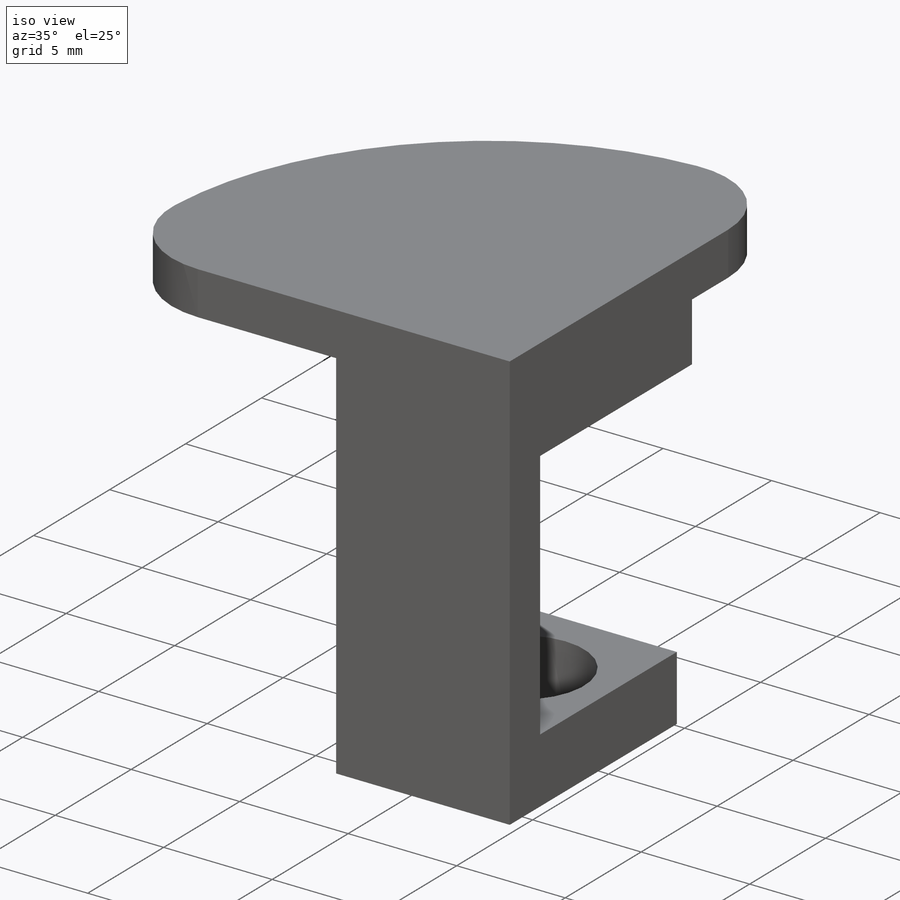
[diagram: iso view]
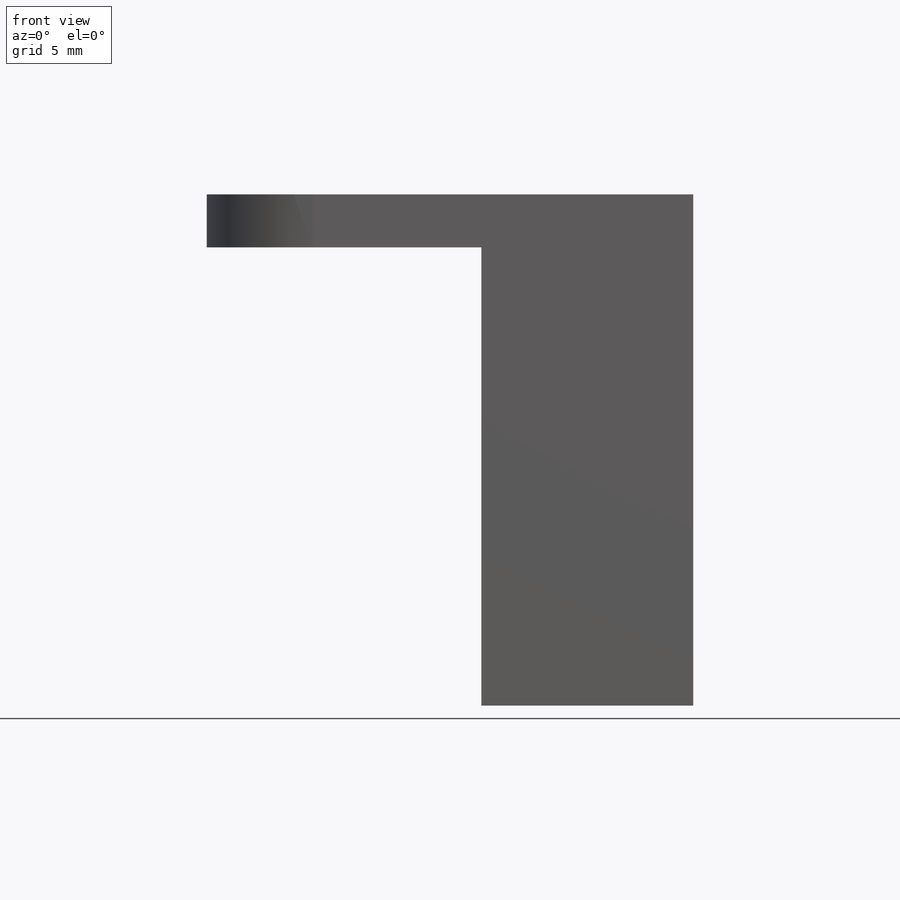
[diagram: front view]
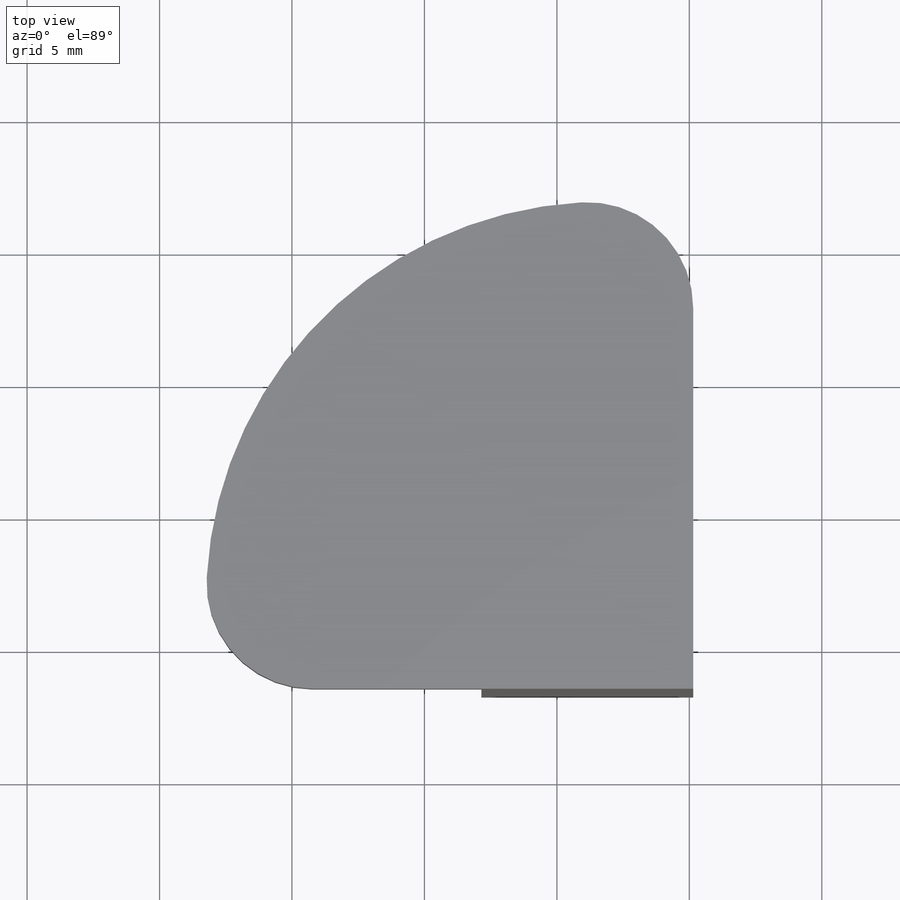
[diagram: top view]
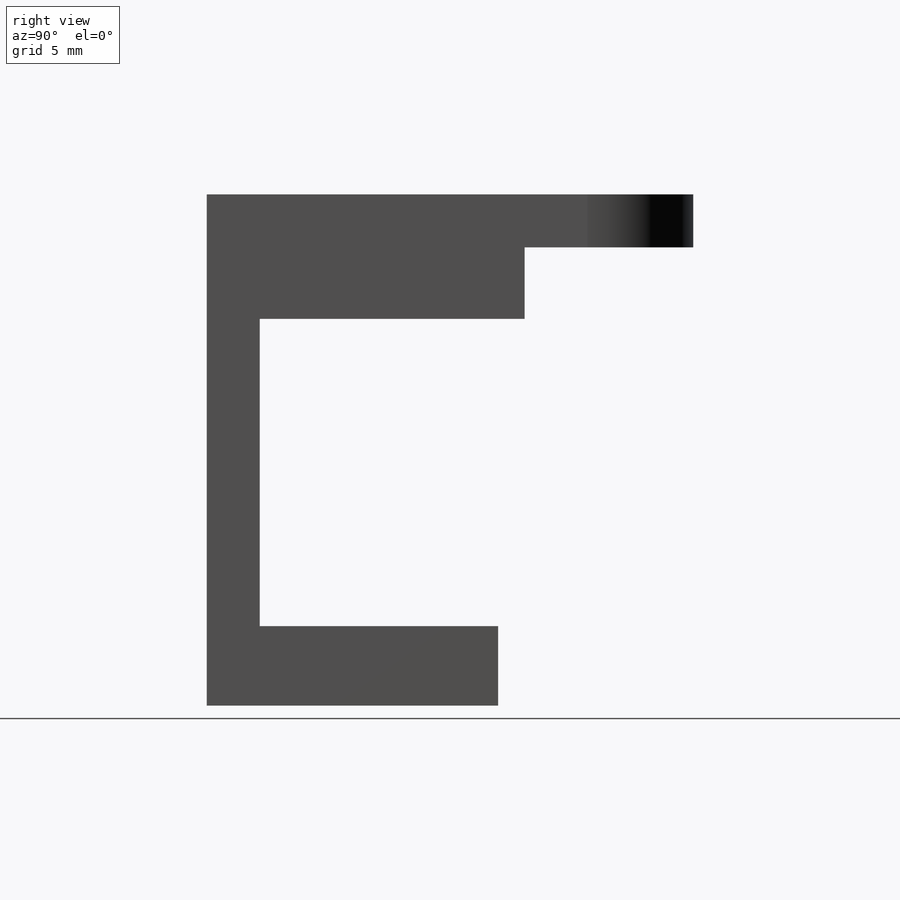
[diagram: right view]
SOLIDWORKS PART (.sldprt)
format: sldprt  version: not decoded by parser v0  size: 273,408 bytes
history: native  units: mm
features: sketch x8, extrude x5, plane x3, fillet x3, cut_extrude x2, material x1 (+9 scaffold rows collapsed)
feature tree (31):
  scaffold x9  (default folders/planes/origin — collapsed)
  material  "Matériau <non spécifié>"
  plane  "Plan de face"
  plane  "Plan de dessus"
  plane  "Plan de droite"
  sketch  "Esquisse1"  dims[c1.D1=~20.373015mm c1.D2=~20.136119mm c2.D1=9.0mm c2.D2=9.0mm]
  extrude  "Boss.-Extru.1"  Depth=3mm
  sketch  "Esquisse2"  dims[D1=6.0mm D2=~13.961012mm]
  cut_extrude  "Enlèv. mat.-Extru.1"  [1 undecoded]
  sketch  "Esquisse3"  dims[c1.D1=~19.406845mm c1.D2=~8.225828mm c2.D1=4.0mm]
  extrude  "Boss.-Extru.3"  Depth=2mm
  sketch  "Esquisse4"  dims[c1.D1=~4.775944mm c1.D2=8.0mm c2.D1=~26.237626mm c2.D2=~83.837081mm c3.D1=0.3mm]
  extrude  "Boss.-Extru.4"  Depth=8mm
  sketch  "Esquisse8"  dims[c1.D1=14.0mm c1.D2=16.0mm c1.D3=8.0mm c1.D4=8.0mm c2.D3=7.0mm c2.D5=7.0mm]
  extrude  "Boss.-Extru.6"  Depth=3mm
  sketch  "Esquisse9"  dims[c1.D2=10.0mm c1.D1=2.0mm c2.D2=2.0mm c2.D1=3.0mm]
  extrude  "Boss.-Extru.8"  [1 undecoded]
  fillet  "Congé2"  Radius=4mm
  fillet  "Congé3"  Radius=2mm
  sketch  "Esquisse6"  dims[D3=15.0mm D1=18.0mm D2=18.0mm]
  sketch  "Esquisse7"  dims[D1=~2.525789mm]
  cut_extrude  "Enlèv. mat.-Extru.2"  Depth=1mm
  fillet  "Congé4"  Radius=1mm
decode coverage: 16 of 18 modeling features carry decoded parameters
note: ~ marks probable driven/reference dimensions
note: 2 parameter values undecoded
note: suppression state not decoded; provenance and decode notes live in map.json
